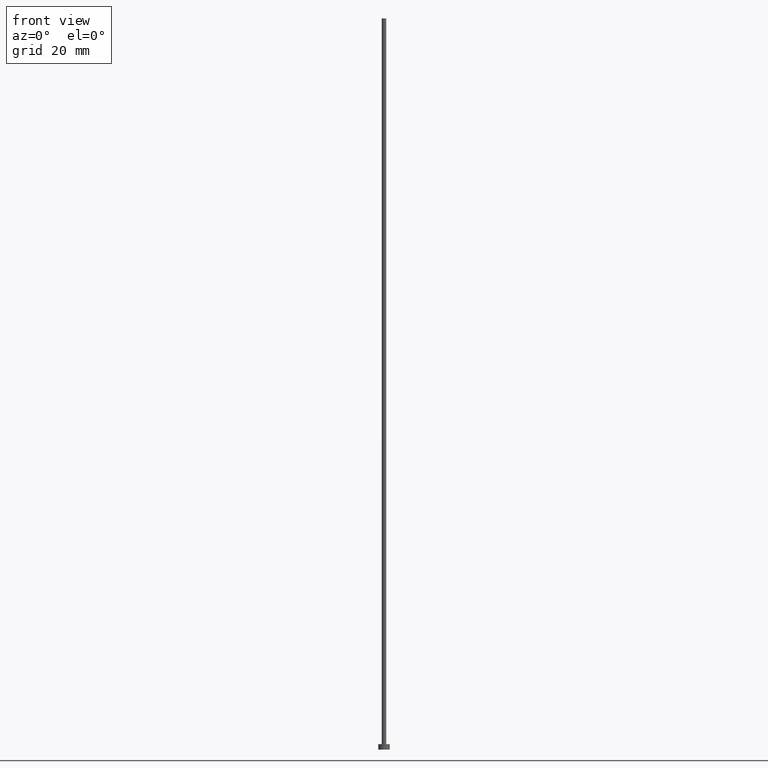
[diagram: clean part render]
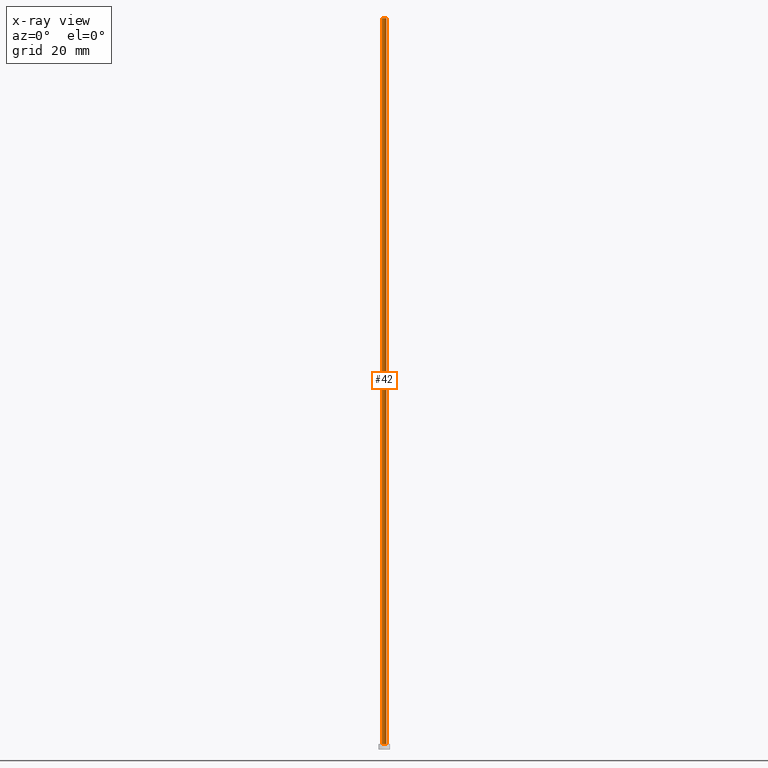
[diagram: x-ray — body ghosted, one internal face saturated and labeled with its STEP entity id]
A machine part, front view, then the same camera in x-ray: the body is ghosted and one INTERNAL B-rep face — a face not visible from any outside direction — is saturated and labeled: STEP entity #42.
In plain terms, the highlighted cylindrical surface (edge-blend (fillet) strip) has radius 0.5 mm, axis along (-0, -0, -1).
Its self-contained STEP definition (entity closure, byte-faithful):
#2 = LINE ( 'NONE', #228, #184 ) ;
#6 = DIRECTION ( 'NONE',  ( 0.000000000000000000, 0.000000000000000000, 1.000000000000000000 ) ) ;
#23 = LINE ( 'NONE', #189, #110 ) ;
#24 = DIRECTION ( 'NONE',  ( 1.000000000000000000, 0.000000000000000000, 0.000000000000000000 ) ) ;
#28 = CARTESIAN_POINT ( 'NONE',  ( 0.000000000000000000, 0.000000000000000000, 159.8999999999999773 ) ) ;
#41 = ORIENTED_EDGE ( 'NONE', *, *, #132, .F. ) ;
#42 = ADVANCED_FACE ( 'NONE', ( #222 ), #250, .T. ) ;
#50 = EDGE_LOOP ( 'NONE', ( #209, #221, #251, #41 ) ) ;
#55 = VERTEX_POINT ( 'NONE', #84 ) ;
#61 = DIRECTION ( 'NONE',  ( 1.000000000000000000, 0.000000000000000000, 0.000000000000000000 ) ) ;
#66 = EDGE_CURVE ( 'NONE', #55, #161, #2, .T. ) ;
#73 = AXIS2_PLACEMENT_3D ( 'NONE', #164, #6, #61 ) ;
#84 = CARTESIAN_POINT ( 'NONE',  ( 0.5000000000000000000, 6.123233995736766036E-17, 159.8999999999999773 ) ) ;
#108 = DIRECTION ( 'NONE',  ( -0.000000000000000000, -0.000000000000000000, -1.000000000000000000 ) ) ;
#110 = VECTOR ( 'NONE', #116, 1000.000000000000000 ) ;
#111 = CARTESIAN_POINT ( 'NONE',  ( 0.000000000000000000, 0.000000000000000000, 1.199999999999999956 ) ) ;
#116 = DIRECTION ( 'NONE',  ( -0.000000000000000000, -0.000000000000000000, -1.000000000000000000 ) ) ;
#119 = AXIS2_PLACEMENT_3D ( 'NONE', #111, #167, #24 ) ;
#120 = DIRECTION ( 'NONE',  ( -1.000000000000000000, 0.000000000000000000, 0.000000000000000000 ) ) ;
#122 = EDGE_CURVE ( 'NONE', #55, #239, #240, .T. ) ;
#124 = AXIS2_PLACEMENT_3D ( 'NONE', #28, #226, #120 ) ;
#132 = EDGE_CURVE ( 'NONE', #239, #185, #23, .T. ) ;
#149 = CIRCLE ( 'NONE', #119, 0.5000000000000000000 ) ;
#152 = EDGE_CURVE ( 'NONE', #161, #185, #149, .T. ) ;
#156 = CARTESIAN_POINT ( 'NONE',  ( -0.5000000000000000000, 0.000000000000000000, 159.8999999999999773 ) ) ;
#161 = VERTEX_POINT ( 'NONE', #163 ) ;
#163 = CARTESIAN_POINT ( 'NONE',  ( 0.5000000000000000000, 6.123233995736766036E-17, 1.199999999999999956 ) ) ;
#164 = CARTESIAN_POINT ( 'NONE',  ( 0.000000000000000000, 0.000000000000000000, 159.8999999999999773 ) ) ;
#167 = DIRECTION ( 'NONE',  ( 0.000000000000000000, 0.000000000000000000, 1.000000000000000000 ) ) ;
#184 = VECTOR ( 'NONE', #108, 1000.000000000000000 ) ;
#185 = VERTEX_POINT ( 'NONE', #194 ) ;
#189 = CARTESIAN_POINT ( 'NONE',  ( -0.5000000000000000000, 0.000000000000000000, 159.8999999999999773 ) ) ;
#194 = CARTESIAN_POINT ( 'NONE',  ( -0.5000000000000000000, 0.000000000000000000, 1.199999999999999956 ) ) ;
#209 = ORIENTED_EDGE ( 'NONE', *, *, #122, .F. ) ;
#221 = ORIENTED_EDGE ( 'NONE', *, *, #66, .T. ) ;
#222 = FACE_OUTER_BOUND ( 'NONE', #50, .T. ) ;
#226 = DIRECTION ( 'NONE',  ( -0.000000000000000000, -0.000000000000000000, -1.000000000000000000 ) ) ;
#228 = CARTESIAN_POINT ( 'NONE',  ( 0.5000000000000000000, 6.123233995736766036E-17, 159.8999999999999773 ) ) ;
#239 = VERTEX_POINT ( 'NONE', #156 ) ;
#240 = CIRCLE ( 'NONE', #73, 0.5000000000000000000 ) ;
#250 = CYLINDRICAL_SURFACE ( 'NONE', #124, 0.5000000000000000000 ) ;
#251 = ORIENTED_EDGE ( 'NONE', *, *, #152, .T. ) ;